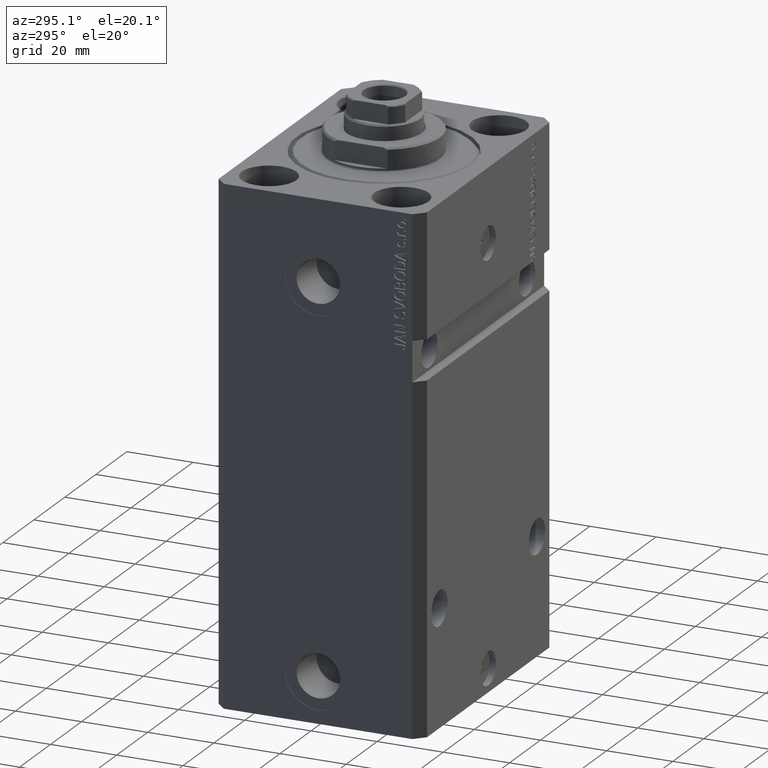
[diagram: clean part render]
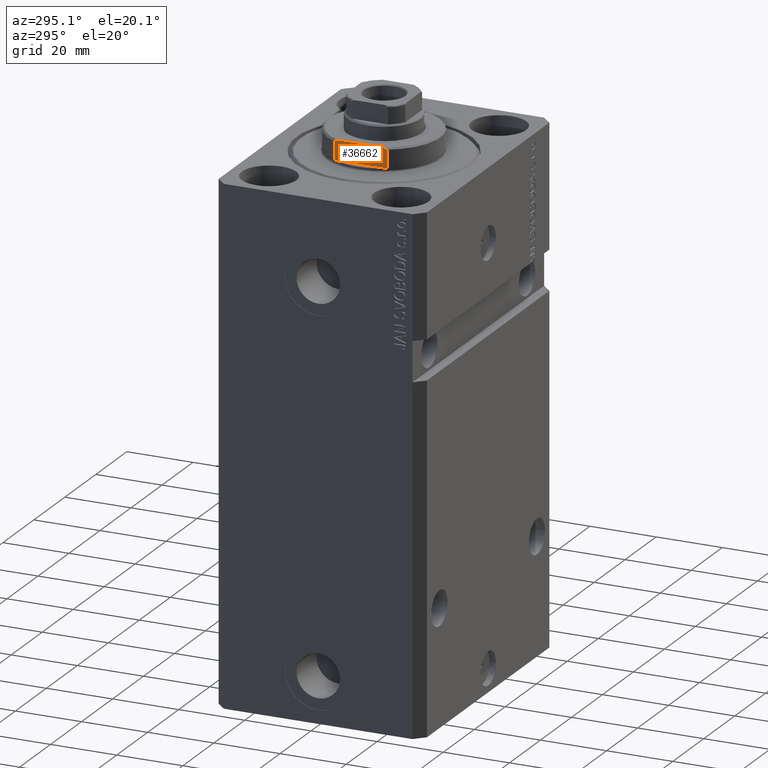
[diagram: same view with one face highlighted and labeled with its STEP entity id]
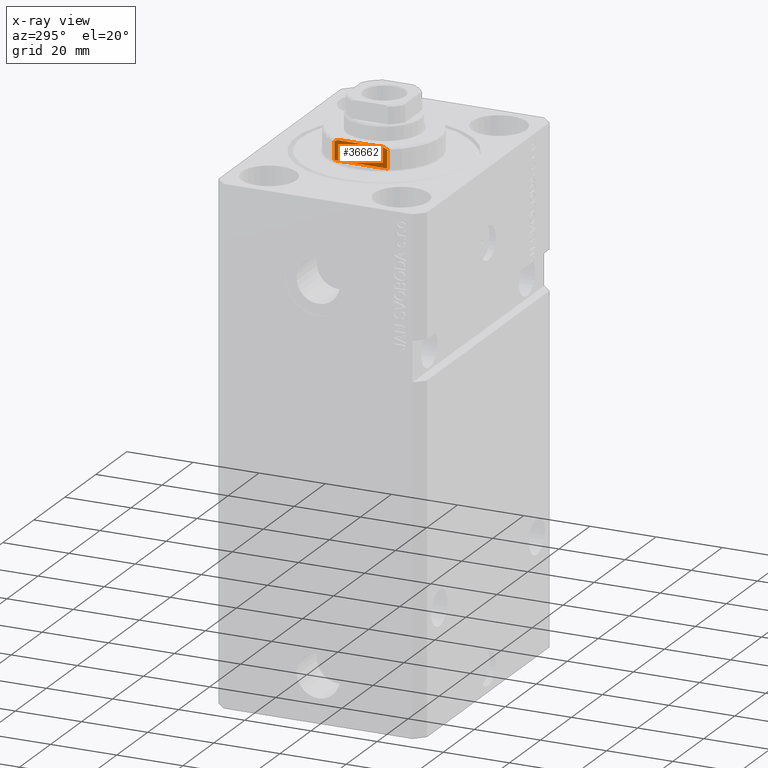
[diagram: x-ray of the same camera — body ghosted, the highlighted face saturated]
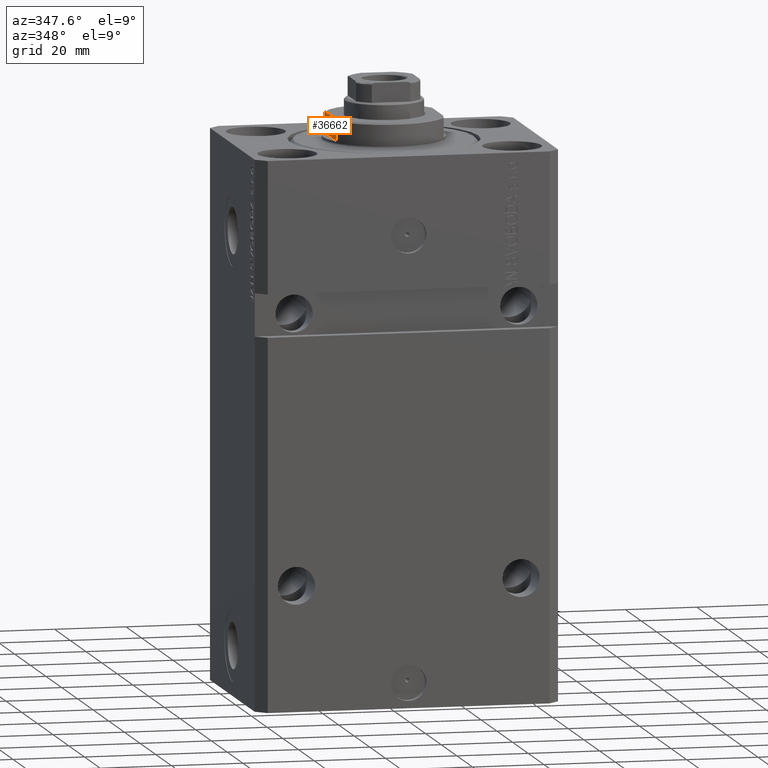
[diagram: same view with one face highlighted and labeled with its STEP entity id]
A machine part, auxiliary view. The second image highlights one B-rep face of the part: STEP entity #36662.
The next image is the same camera in x-ray: the body ghosted, the highlighted face saturated — about 0% of this face is hidden behind the body in this view.
A second angle (auxiliary view) of the same face is appended — the face is thin or edge-on in the first view.
In plain terms, the highlighted planar face has unit normal (-1, 0, 0).
Its self-contained STEP definition (entity closure, byte-faithful):
#269 = DIRECTION ( 'NONE',  ( -0.000000000000000000, 0.000000000000000000, -1.000000000000000000 ) ) ;
#1093 = B_SPLINE_CURVE_WITH_KNOTS ( 'NONE', 3,
 ( #43939, #12523, #12298, #5626 ),
 .UNSPECIFIED., .F., .F.,
 ( 4, 4 ),
 ( 0.03336039268696996268, 0.03459498301323797598 ),
 .UNSPECIFIED. ) ;
#1555 = CARTESIAN_POINT ( 'NONE',  ( 15.00000000000000000, -7.629305121525828071, -6.674444648693746984 ) ) ;
#3372 = DIRECTION ( 'NONE',  ( -0.000000000000000000, -0.000000000000000000, 1.000000000000000000 ) ) ;
#3930 = CARTESIAN_POINT ( 'NONE',  ( 15.00000000000000000, -42.42640687119285303, -1.000000000000000000 ) ) ;
#4391 = ORIENTED_EDGE ( 'NONE', *, *, #18643, .F. ) ;
#4503 = LINE ( 'NONE', #42804, #26060 ) ;
#5626 = CARTESIAN_POINT ( 'NONE',  ( 14.99999999999999645, 6.873863542433817031, -7.000000000000000000 ) ) ;
#7278 = VERTEX_POINT ( 'NONE', #44973 ) ;
#7450 = VERTEX_POINT ( 'NONE', #19430 ) ;
#8059 = LINE ( 'NONE', #15838, #33819 ) ;
#8852 = ORIENTED_EDGE ( 'NONE', *, *, #29539, .F. ) ;
#11401 = DIRECTION ( 'NONE',  ( 0.000000000000000000, -1.000000000000000000, -0.000000000000000000 ) ) ;
#11864 = CARTESIAN_POINT ( 'NONE',  ( 15.00000000000000000, -8.000000000000001776, -6.500000000000013323 ) ) ;
#12298 = CARTESIAN_POINT ( 'NONE',  ( 15.00000000000000000, 7.253126193285960532, -6.842000017654668476 ) ) ;
#12523 = CARTESIAN_POINT ( 'NONE',  ( 15.00000000000000000, 7.628315461082496363, -6.674910371255315056 ) ) ;
#15364 = DIRECTION ( 'NONE',  ( 0.000000000000000000, -1.000000000000000000, -0.000000000000000000 ) ) ;
#15707 = B_SPLINE_CURVE_WITH_KNOTS ( 'NONE', 3,
 ( #25195, #33189, #1555, #18332 ),
 .UNSPECIFIED., .F., .F.,
 ( 4, 4 ),
 ( 0.04875332532859021767, 0.04998905627745620778 ),
 .UNSPECIFIED. ) ;
#15779 = VERTEX_POINT ( 'NONE', #11864 ) ;
#15838 = CARTESIAN_POINT ( 'NONE',  ( 15.00000000000000000, -8.000000000000001776, -7.000000000000000000 ) ) ;
#16901 = EDGE_LOOP ( 'NONE', ( #39169, #29850, #29078, #8852, #29668, #4391 ) ) ;
#18332 = CARTESIAN_POINT ( 'NONE',  ( 15.00000000000000000, -8.000000000000001776, -6.500000000000013323 ) ) ;
#18643 = EDGE_CURVE ( 'NONE', #7450, #38775, #1093, .T. ) ;
#19430 = CARTESIAN_POINT ( 'NONE',  ( 15.00000000000000000, 8.000000000000001776, -6.500000000000013323 ) ) ;
#19518 = VECTOR ( 'NONE', #15364, 1000.000000000000000 ) ;
#19885 = VERTEX_POINT ( 'NONE', #36516 ) ;
#22949 = DIRECTION ( 'NONE',  ( 0.000000000000000000, 0.000000000000000000, -1.000000000000000000 ) ) ;
#23591 = EDGE_CURVE ( 'NONE', #7450, #7278, #39158, .T. ) ;
#24292 = CARTESIAN_POINT ( 'NONE',  ( 14.99999999999999645, -8.000000000000003553, -1.000000000000000000 ) ) ;
#25195 = CARTESIAN_POINT ( 'NONE',  ( 14.99999999999999645, -6.873863542433817031, -7.000000000000000000 ) ) ;
#26060 = VECTOR ( 'NONE', #11401, 1000.000000000000000 ) ;
#26131 = CARTESIAN_POINT ( 'NONE',  ( 15.00000000000000000, -42.42640687119285303, -7.000000000000000000 ) ) ;
#26176 = EDGE_CURVE ( 'NONE', #35093, #15779, #8059, .T. ) ;
#28625 = CARTESIAN_POINT ( 'NONE',  ( 15.00000000000000000, 8.000000000000001776, -7.000000000000000000 ) ) ;
#29078 = ORIENTED_EDGE ( 'NONE', *, *, #26176, .T. ) ;
#29539 = EDGE_CURVE ( 'NONE', #19885, #15779, #15707, .T. ) ;
#29668 = ORIENTED_EDGE ( 'NONE', *, *, #33853, .F. ) ;
#29850 = ORIENTED_EDGE ( 'NONE', *, *, #33333, .T. ) ;
#30022 = VECTOR ( 'NONE', #3372, 1000.000000000000000 ) ;
#31692 = PLANE ( 'NONE',  #34928 ) ;
#32370 = DIRECTION ( 'NONE',  ( 1.000000000000000000, 0.000000000000000000, -0.000000000000000000 ) ) ;
#33189 = CARTESIAN_POINT ( 'NONE',  ( 15.00000000000000000, -7.254193676168162241, -6.841555306644511170 ) ) ;
#33333 = EDGE_CURVE ( 'NONE', #7278, #35093, #4503, .T. ) ;
#33819 = VECTOR ( 'NONE', #22949, 1000.000000000000000 ) ;
#33853 = EDGE_CURVE ( 'NONE', #38775, #19885, #36224, .T. ) ;
#34928 = AXIS2_PLACEMENT_3D ( 'NONE', #3930, #32370, #269 ) ;
#35093 = VERTEX_POINT ( 'NONE', #24292 ) ;
#36224 = LINE ( 'NONE', #26131, #19518 ) ;
#36516 = CARTESIAN_POINT ( 'NONE',  ( 14.99999999999999645, -6.873863542433817031, -7.000000000000000000 ) ) ;
#36662 = ADVANCED_FACE ( 'NONE', ( #42241 ), #31692, .T. ) ;
#36670 = CARTESIAN_POINT ( 'NONE',  ( 14.99999999999999645, 6.873863542433817031, -7.000000000000000000 ) ) ;
#38775 = VERTEX_POINT ( 'NONE', #36670 ) ;
#39158 = LINE ( 'NONE', #28625, #30022 ) ;
#39169 = ORIENTED_EDGE ( 'NONE', *, *, #23591, .T. ) ;
#42241 = FACE_OUTER_BOUND ( 'NONE', #16901, .T. ) ;
#42804 = CARTESIAN_POINT ( 'NONE',  ( 15.00000000000000000, -42.42640687119285303, -1.000000000000000000 ) ) ;
#43939 = CARTESIAN_POINT ( 'NONE',  ( 15.00000000000000000, 8.000000000000001776, -6.500000000000013323 ) ) ;
#44973 = CARTESIAN_POINT ( 'NONE',  ( 14.99999999999999645, 8.000000000000003553, -1.000000000000000000 ) ) ;